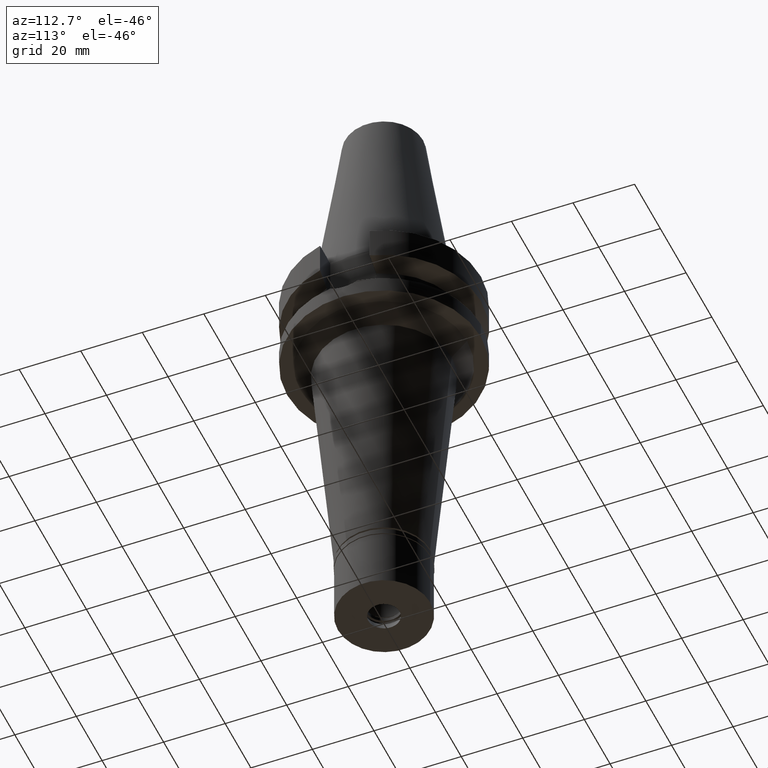
[diagram: clean part render]
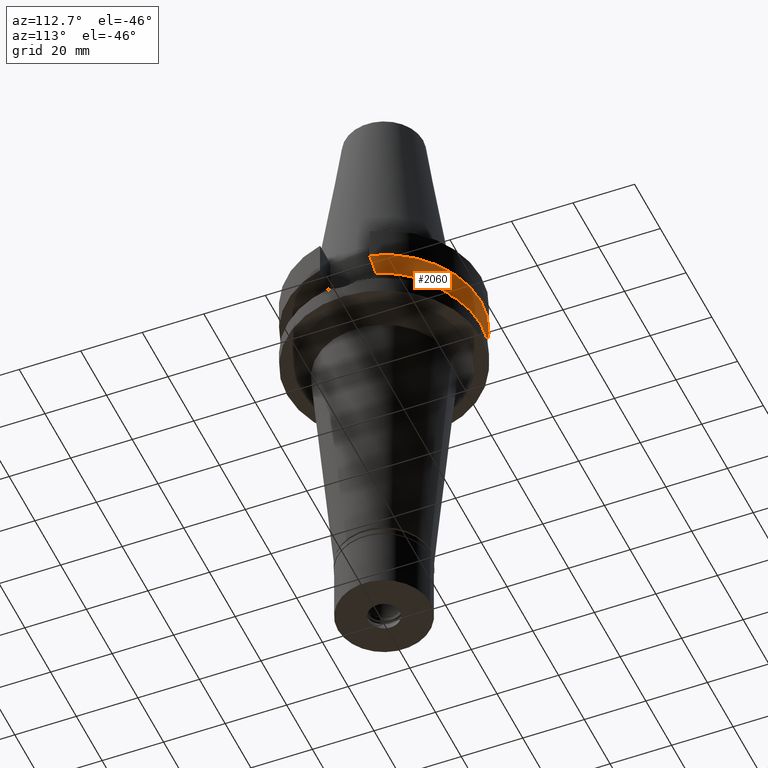
[diagram: same view with one face highlighted and labeled with its STEP entity id]
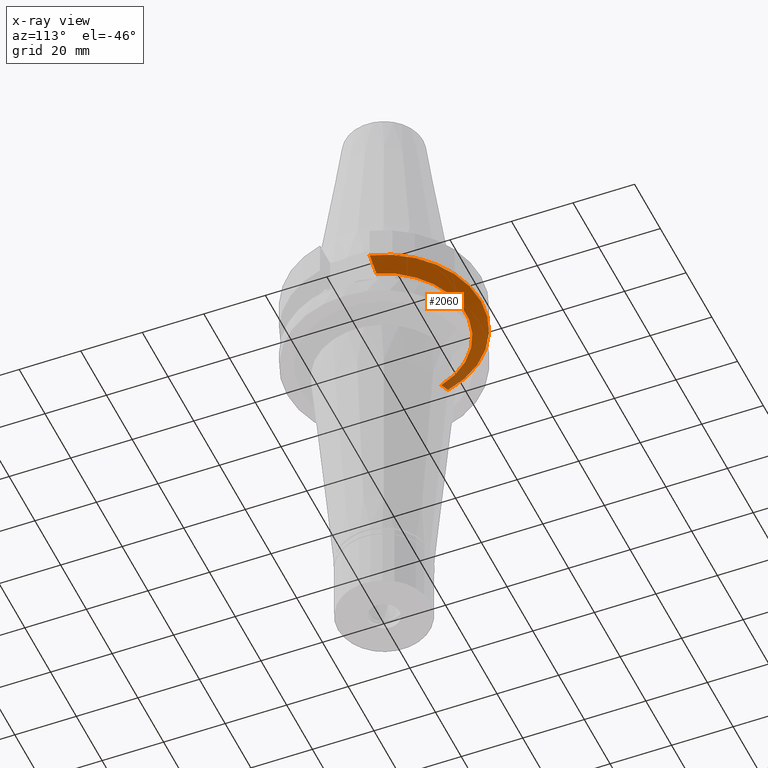
[diagram: x-ray of the same camera — body ghosted, the highlighted face saturated]
A machine part, auxiliary view. The second image highlights one B-rep face of the part: STEP entity #2060.
The next image is the same camera in x-ray: the body ghosted, the highlighted face saturated — about 7% of this face is hidden behind the body in this view.
In plain terms, the highlighted conical surface has half-angle 60 deg.
Its self-contained STEP definition (entity closure, byte-faithful):
#8 = VERTEX_POINT ( 'NONE', #571 ) ;
#31 = FACE_OUTER_BOUND ( 'NONE', #1677, .T. ) ;
#63 = ORIENTED_EDGE ( 'NONE', *, *, #676, .F. ) ;
#107 = B_SPLINE_CURVE_WITH_KNOTS ( 'NONE', 3,
 ( #2340, #2357, #853, #614 ),
 .UNSPECIFIED., .F., .F.,
 ( 4, 4 ),
 ( 0.0000000000000000000, 1.000000000000000000 ),
 .UNSPECIFIED. ) ;
#136 = AXIS2_PLACEMENT_3D ( 'NONE', #1000, #2939, #2067 ) ;
#155 = CARTESIAN_POINT ( 'NONE',  ( -28.57295871290481060, 8.050008282117520508, -12.61547480398390064 ) ) ;
#343 = ORIENTED_EDGE ( 'NONE', *, *, #2600, .F. ) ;
#368 = VERTEX_POINT ( 'NONE', #643 ) ;
#381 = CARTESIAN_POINT ( 'NONE',  ( -30.45402162749999775, 8.050004143576002136, -11.56546832909999978 ) ) ;
#384 = VERTEX_POINT ( 'NONE', #1686 ) ;
#571 = CARTESIAN_POINT ( 'NONE',  ( -25.24772216379000156, 8.050001586350001404, -14.45224487750000186 ) ) ;
#614 = CARTESIAN_POINT ( 'NONE',  ( 25.24772413104999913, 8.049995416295999462, -14.45229202408999925 ) ) ;
#643 = CARTESIAN_POINT ( 'NONE',  ( 25.24772413104999913, 8.049995416295999462, -14.45229202408999925 ) ) ;
#645 = CONICAL_SURFACE ( 'NONE', #136, 29.00000000000000000, 1.047197551196400456 ) ;
#676 = EDGE_CURVE ( 'NONE', #808, #384, #3121, .T. ) ;
#760 = CARTESIAN_POINT ( 'NONE',  ( 0.0000000000000000000, 1.065333950388000029E-14, -11.56550565266999975 ) ) ;
#770 = EDGE_CURVE ( 'NONE', #8, #384, #1808, .T. ) ;
#808 = VERTEX_POINT ( 'NONE', #2109 ) ;
#853 = CARTESIAN_POINT ( 'NONE',  ( 26.83754617027986100, 8.049990822442618210, -13.57774887527135554 ) ) ;
#1000 = CARTESIAN_POINT ( 'NONE',  ( 0.0000000000000000000, 1.065333950388000029E-14, -13.00888132564000088 ) ) ;
#1309 = CIRCLE ( 'NONE', #2511, 26.50000000000000711 ) ;
#1524 = DIRECTION ( 'NONE',  ( 0.0000000000000000000, 0.0000000000000000000, -1.000000000000000000 ) ) ;
#1596 = CARTESIAN_POINT ( 'NONE',  ( 0.0000000000000000000, 1.065333950388000029E-14, -14.45225699861000024 ) ) ;
#1677 = EDGE_LOOP ( 'NONE', ( #63, #2477, #343, #2863 ) ) ;
#1686 = CARTESIAN_POINT ( 'NONE',  ( -30.45402162749999775, 8.050004143576002136, -11.56546832909999978 ) ) ;
#1743 = DIRECTION ( 'NONE',  ( 0.0000000000000000000, 0.0000000000000000000, 1.000000000000000000 ) ) ;
#1808 = B_SPLINE_CURVE_WITH_KNOTS ( 'NONE', 3,
 ( #2042, #2325, #155, #381 ),
 .UNSPECIFIED., .F., .F.,
 ( 4, 4 ),
 ( 0.0000000000000000000, 1.000000000000000000 ),
 .UNSPECIFIED. ) ;
#2042 = CARTESIAN_POINT ( 'NONE',  ( -25.24772216379000156, 8.050001586350001404, -14.45224487750000186 ) ) ;
#2060 = ADVANCED_FACE ( 'NONE', ( #31 ), #645, .T. ) ;
#2067 = DIRECTION ( 'NONE',  ( 0.0000000000000000000, 1.000000000000000000, 0.0000000000000000000 ) ) ;
#2109 = CARTESIAN_POINT ( 'NONE',  ( 30.45402291369999759, 8.049999277737999392, -11.56551215793000154 ) ) ;
#2325 = CARTESIAN_POINT ( 'NONE',  ( -26.83758148222326412, 8.050003176126917737, -13.57772735283707277 ) ) ;
#2340 = CARTESIAN_POINT ( 'NONE',  ( 30.45402291369999759, 8.049999277737999392, -11.56551215793000154 ) ) ;
#2357 = CARTESIAN_POINT ( 'NONE',  ( 28.57292330019661009, 8.049998556417881090, -12.61549604993788343 ) ) ;
#2477 = ORIENTED_EDGE ( 'NONE', *, *, #2584, .T. ) ;
#2495 = DIRECTION ( 'NONE',  ( 0.0000000000000000000, 1.000000000000000000, 0.0000000000000000000 ) ) ;
#2511 = AXIS2_PLACEMENT_3D ( 'NONE', #1596, #1524, #3037 ) ;
#2584 = EDGE_CURVE ( 'NONE', #808, #368, #107, .T. ) ;
#2600 = EDGE_CURVE ( 'NONE', #8, #368, #1309, .T. ) ;
#2863 = ORIENTED_EDGE ( 'NONE', *, *, #770, .T. ) ;
#2939 = DIRECTION ( 'NONE',  ( 0.0000000000000000000, 0.0000000000000000000, 1.000000000000000000 ) ) ;
#3037 = DIRECTION ( 'NONE',  ( -0.9527442516822307583, 0.3037735849057093818, 0.0000000000000000000 ) ) ;
#3067 = AXIS2_PLACEMENT_3D ( 'NONE', #760, #1743, #2495 ) ;
#3121 = CIRCLE ( 'NONE', #3067, 31.50000000000000000 ) ;